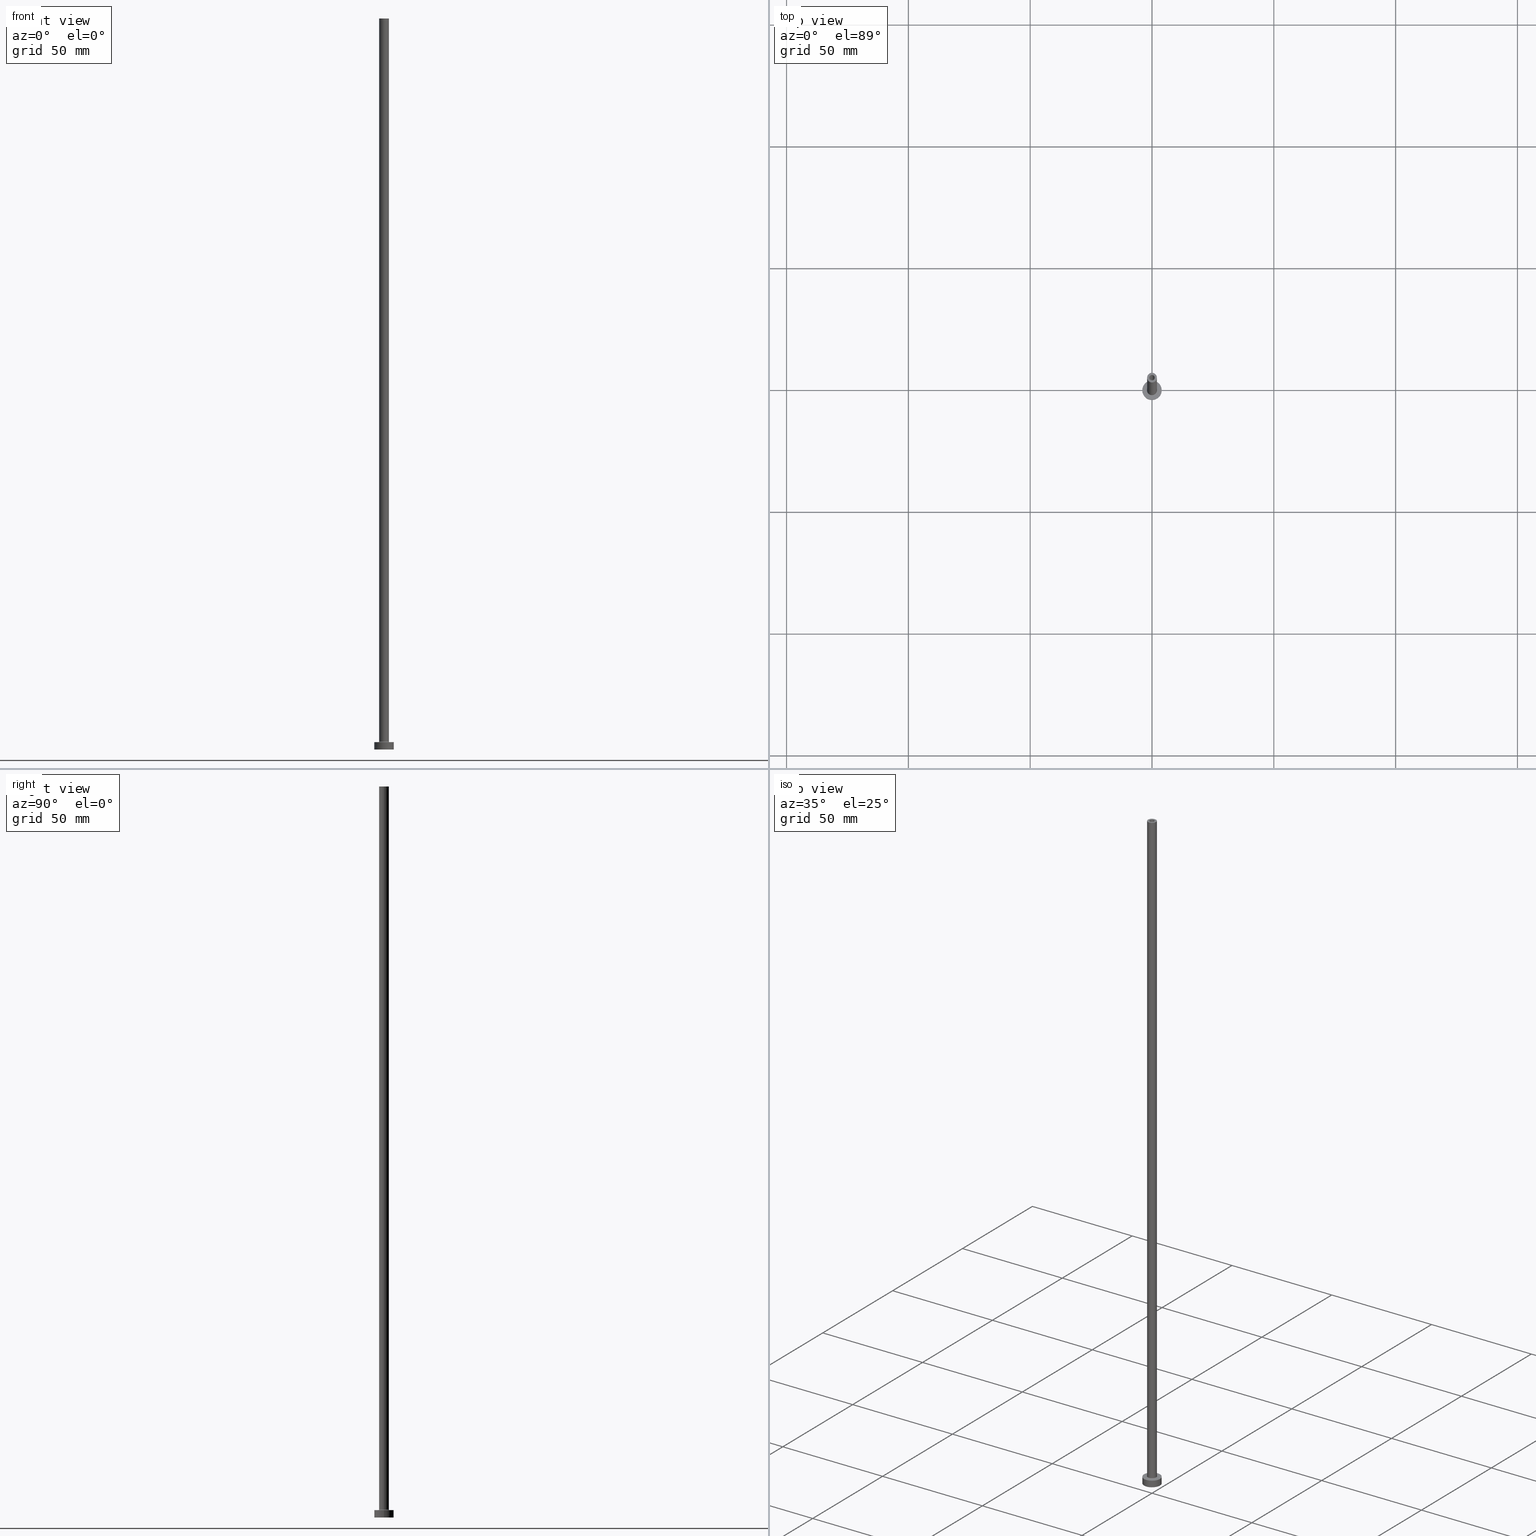
[diagram: canonical four-view strip — front | top / right | iso, engineering-drawing reading convention]
A machine part, canonical four-view strip (front | top / right | iso — engineering-drawing reading convention). The complete STEP part file that produces these views, byte-faithful:
ISO-10303-21;
HEADER;
FILE_DESCRIPTION (( 'STEP AP203' ),
    '1' );
FILE_NAME ('8319.STEP',
    '2023-02-13T18:08:44',
    ( '' ),
    ( '' ),
    'SwSTEP 2.0',
    'SolidWorks 2019',
    '' );
FILE_SCHEMA (( 'CONFIG_CONTROL_DESIGN' ));
ENDSEC;

DATA;
#1 = DATE_AND_TIME ( #283, #392 ) ;
#2 = ORIENTED_EDGE ( 'NONE', *, *, #139, .T. ) ;
#3 = EDGE_CURVE ( 'NONE', #393, #308, #415, .T. ) ;
#4 = VERTEX_POINT ( 'NONE', #151 ) ;
#5 = APPROVAL_DATE_TIME ( #355, #87 ) ;
#6 = EDGE_CURVE ( 'NONE', #135, #224, #374, .T. ) ;
#7 = ORIENTED_EDGE ( 'NONE', *, *, #399, .F. ) ;
#8 = DIRECTION ( 'NONE',  ( 1.000000000000000000, 0.000000000000000000, 0.000000000000000000 ) ) ;
#9 = CYLINDRICAL_SURFACE ( 'NONE', #460, 1.100000000000000089 ) ;
#10 = PLANE ( 'NONE',  #253 ) ;
#11 = CIRCLE ( 'NONE', #286, 1.250000000000000000 ) ;
#12 = VERTEX_POINT ( 'NONE', #342 ) ;
#13 = DIRECTION ( 'NONE',  ( 0.000000000000000000, 0.000000000000000000, 1.000000000000000000 ) ) ;
#14 = EDGE_CURVE ( 'NONE', #234, #220, #431, .T. ) ;
#15 = DIRECTION ( 'NONE',  ( 1.000000000000000000, 0.000000000000000000, 0.000000000000000000 ) ) ;
#16 = DIRECTION ( 'NONE',  ( 0.000000000000000000, 0.000000000000000000, 1.000000000000000000 ) ) ;
#17 = APPLICATION_CONTEXT ( 'configuration controlled 3d designs of mechanical parts and assemblies' ) ;
#18 = AXIS2_PLACEMENT_3D ( 'NONE', #339, #254, #408 ) ;
#19 = FACE_OUTER_BOUND ( 'NONE', #31, .T. ) ;
#20 = VERTEX_POINT ( 'NONE', #388 ) ;
#21 = CARTESIAN_POINT ( 'NONE',  ( 0.000000000000000000, 0.000000000000000000, 0.000000000000000000 ) ) ;
#22 = DIRECTION ( 'NONE',  ( 0.000000000000000000, 0.000000000000000000, 1.000000000000000000 ) ) ;
#23 = APPROVAL_DATE_TIME ( #27, #136 ) ;
#24 = FACE_BOUND ( 'NONE', #327, .T. ) ;
#25 = EDGE_CURVE ( 'NONE', #224, #441, #262, .T. ) ;
#26 = ADVANCED_BREP_SHAPE_REPRESENTATION ( '8319', ( #76, #406 ), #86 ) ;
#27 = DATE_AND_TIME ( #384, #122 ) ;
#28 = AXIS2_PLACEMENT_3D ( 'NONE', #439, #189, #199 ) ;
#29 = ORIENTED_EDGE ( 'NONE', *, *, #356, .T. ) ;
#30 = CYLINDRICAL_SURFACE ( 'NONE', #400, 2.000000000000000000 ) ;
#31 = EDGE_LOOP ( 'NONE', ( #103, #371, #345, #240 ) ) ;
#32 = EDGE_CURVE ( 'NONE', #112, #242, #277, .T. ) ;
#33 = CARTESIAN_POINT ( 'NONE',  ( 0.000000000000000000, 0.000000000000000000, 3.000000000000000000 ) ) ;
#34 = PERSON_AND_ORGANIZATION_ROLE ( 'creator' ) ;
#35 = ADVANCED_FACE ( 'NONE', ( #128 ), #275, .F. ) ;
#36 = APPROVAL_STATUS ( 'not_yet_approved' ) ;
#37 = ORIENTED_EDGE ( 'NONE', *, *, #340, .T. ) ;
#38 = ADVANCED_FACE ( 'NONE', ( #169, #385 ), #176, .T. ) ;
#39 = CIRCLE ( 'NONE', #430, 2.000000000000000000 ) ;
#40 = VERTEX_POINT ( 'NONE', #69 ) ;
#41 = PERSON_AND_ORGANIZATION ( #214, #260 ) ;
#42 = CARTESIAN_POINT ( 'NONE',  ( 1.250000000000000000, 1.530808498934191324E-16, 0.000000000000000000 ) ) ;
#43 = ORIENTED_EDGE ( 'NONE', *, *, #196, .F. ) ;
#44 = DIRECTION ( 'NONE',  ( 1.000000000000000000, 0.000000000000000000, 0.000000000000000000 ) ) ;
#45 = DIRECTION ( 'NONE',  ( 0.000000000000000000, 0.000000000000000000, 1.000000000000000000 ) ) ;
#46 = CARTESIAN_POINT ( 'NONE',  ( 2.000000000000000000, 2.449293598294706414E-16, 300.0000000000000000 ) ) ;
#47 = AXIS2_PLACEMENT_3D ( 'NONE', #289, #299, #255 ) ;
#48 = DIRECTION ( 'NONE',  ( 1.224646799147353207E-16, 1.000000000000000000, -0.000000000000000000 ) ) ;
#49 = CARTESIAN_POINT ( 'NONE',  ( 2.299999999999999822, 0.000000000000000000, 3.300000000000025135 ) ) ;
#50 = CARTESIAN_POINT ( 'NONE',  ( -1.100000000000000089, 0.000000000000000000, 265.0000000000000000 ) ) ;
#51 = ADVANCED_FACE ( 'NONE', ( #239, #457 ), #245, .T. ) ;
#52 = CARTESIAN_POINT ( 'NONE',  ( 0.000000000000000000, 0.000000000000000000, 265.0000000000000000 ) ) ;
#53 = CARTESIAN_POINT ( 'NONE',  ( 0.000000000000000000, 0.000000000000000000, 300.0000000000000000 ) ) ;
#54 = AXIS2_PLACEMENT_3D ( 'NONE', #52, #236, #124 ) ;
#55 = APPROVAL_PERSON_ORGANIZATION ( #129, #87, #182 ) ;
#56 = ORIENTED_EDGE ( 'NONE', *, *, #426, .F. ) ;
#57 = DIRECTION ( 'NONE',  ( -0.000000000000000000, -0.000000000000000000, -1.000000000000000000 ) ) ;
#58 = DIRECTION ( 'NONE',  ( 0.000000000000000000, 0.000000000000000000, 1.000000000000000000 ) ) ;
#59 = DIRECTION ( 'NONE',  ( -0.000000000000000000, -0.000000000000000000, -1.000000000000000000 ) ) ;
#60 = CYLINDRICAL_SURFACE ( 'NONE', #18, 1.250000000000000000 ) ;
#61 = PERSON_AND_ORGANIZATION ( #214, #260 ) ;
#62 = ORIENTED_EDGE ( 'NONE', *, *, #84, .T. ) ;
#63 = CARTESIAN_POINT ( 'NONE',  ( 0.000000000000000000, 0.000000000000000000, 3.000000000000000000 ) ) ;
#64 = DIRECTION ( 'NONE',  ( 0.000000000000000000, 0.000000000000000000, 1.000000000000000000 ) ) ;
#65 = EDGE_CURVE ( 'NONE', #441, #224, #80, .T. ) ;
#66 = APPROVAL_PERSON_ORGANIZATION ( #215, #136, #456 ) ;
#67 = EDGE_LOOP ( 'NONE', ( #381, #446, #166, #146 ) ) ;
#68 = AXIS2_PLACEMENT_3D ( 'NONE', #334, #301, #101 ) ;
#69 = CARTESIAN_POINT ( 'NONE',  ( -1.100000000000000089, 0.000000000000000000, 300.0000000000000000 ) ) ;
#70 = APPLICATION_PROTOCOL_DEFINITION ( 'international standard', 'config_control_design', 1994, #17 ) ;
#71 = PRODUCT ( '8319', '8319', '', ( #312 ) ) ;
#72 = APPROVAL_ROLE ( '' ) ;
#73 = VERTEX_POINT ( 'NONE', #307 ) ;
#74 = ORIENTED_EDGE ( 'NONE', *, *, #32, .F. ) ;
#75 = PERSON_AND_ORGANIZATION_ROLE ( 'classification_officer' ) ;
#76 = MANIFOLD_SOLID_BREP ( 'Odebrat vysunut�m4', #213 ) ;
#77 = CIRCLE ( 'NONE', #28, 1.100000000000000089 ) ;
#78 = DIRECTION ( 'NONE',  ( 0.000000000000000000, 0.000000000000000000, 1.000000000000000000 ) ) ;
#79 = AXIS2_PLACEMENT_3D ( 'NONE', #130, #164, #105 ) ;
#80 = CIRCLE ( 'NONE', #335, 1.100000000000000089 ) ;
#81 = DIRECTION ( 'NONE',  ( -0.000000000000000000, -0.000000000000000000, -1.000000000000000000 ) ) ;
#82 = CYLINDRICAL_SURFACE ( 'NONE', #306, 4.000000000000000000 ) ;
#83 = LINE ( 'NONE', #226, #316 ) ;
#84 = EDGE_CURVE ( 'NONE', #40, #441, #417, .T. ) ;
#85 = CARTESIAN_POINT ( 'NONE',  ( 0.000000000000000000, 0.000000000000000000, 3.300000000000025135 ) ) ;
#86 =( GEOMETRIC_REPRESENTATION_CONTEXT ( 3 ) GLOBAL_UNCERTAINTY_ASSIGNED_CONTEXT ( ( #109 ) ) GLOBAL_UNIT_ASSIGNED_CONTEXT ( ( #134, #241, #380 ) ) REPRESENTATION_CONTEXT ( 'NONE', 'WORKASPACE' ) );
#87 = APPROVAL ( #36, 'NEUR�EN�' ) ;
#88 = CARTESIAN_POINT ( 'NONE',  ( 0.000000000000000000, 0.000000000000000000, 3.300000000000025135 ) ) ;
#89 = ORIENTED_EDGE ( 'NONE', *, *, #207, .F. ) ;
#90 = CARTESIAN_POINT ( 'NONE',  ( -4.000000000000000000, 0.000000000000000000, 3.000000000000000000 ) ) ;
#91 = EDGE_LOOP ( 'NONE', ( #368, #298 ) ) ;
#92 = FACE_OUTER_BOUND ( 'NONE', #354, .T. ) ;
#93 = ORIENTED_EDGE ( 'NONE', *, *, #453, .F. ) ;
#94 = DIRECTION ( 'NONE',  ( -0.000000000000000000, -0.000000000000000000, -1.000000000000000000 ) ) ;
#95 = CARTESIAN_POINT ( 'NONE',  ( -1.100000000000000089, 0.000000000000000000, 300.0000000000000000 ) ) ;
#96 = CIRCLE ( 'NONE', #243, 4.000000000000000000 ) ;
#97 = EDGE_LOOP ( 'NONE', ( #89, #292, #37, #318 ) ) ;
#98 = DIRECTION ( 'NONE',  ( 0.000000000000000000, -1.000000000000000000, 0.000000000000000000 ) ) ;
#99 = DIRECTION ( 'NONE',  ( 1.000000000000000000, 0.000000000000000000, 0.000000000000000000 ) ) ;
#100 = APPROVAL_STATUS ( 'not_yet_approved' ) ;
#101 = DIRECTION ( 'NONE',  ( 1.000000000000000000, 0.000000000000000000, 0.000000000000000000 ) ) ;
#102 = ADVANCED_FACE ( 'NONE', ( #379 ), #30, .T. ) ;
#103 = ORIENTED_EDGE ( 'NONE', *, *, #349, .F. ) ;
#104 = AXIS2_PLACEMENT_3D ( 'NONE', #49, #98, #378 ) ;
#105 = DIRECTION ( 'NONE',  ( -1.000000000000000000, 0.000000000000000000, 0.000000000000000000 ) ) ;
#106 = DATE_TIME_ROLE ( 'classification_date' ) ;
#107 = ADVANCED_FACE ( 'NONE', ( #452 ), #60, .F. ) ;
#108 = ORIENTED_EDGE ( 'NONE', *, *, #358, .F. ) ;
#109 = UNCERTAINTY_MEASURE_WITH_UNIT (LENGTH_MEASURE( 1.000000000000000082E-05 ), #134, 'distance_accuracy_value', 'NONE');
#110 = AXIS2_PLACEMENT_3D ( 'NONE', #204, #59, #209 ) ;
#111 = EDGE_CURVE ( 'NONE', #212, #12, #11, .T. ) ;
#112 = VERTEX_POINT ( 'NONE', #231 ) ;
#113 = AXIS2_PLACEMENT_3D ( 'NONE', #120, #401, #117 ) ;
#114 = DIRECTION ( 'NONE',  ( 0.000000000000000000, 0.000000000000000000, 1.000000000000000000 ) ) ;
#115 = ADVANCED_FACE ( 'NONE', ( #153 ), #326, .T. ) ;
#116 = CARTESIAN_POINT ( 'NONE',  ( 0.000000000000000000, 0.000000000000000000, 3.000000000000000000 ) ) ;
#117 = DIRECTION ( 'NONE',  ( 1.000000000000000000, 0.000000000000000000, 0.000000000000000000 ) ) ;
#118 = CC_DESIGN_PERSON_AND_ORGANIZATION_ASSIGNMENT ( #61, #34, ( #201 ) ) ;
#119 = DIRECTION ( 'NONE',  ( 0.000000000000000000, 0.000000000000000000, 1.000000000000000000 ) ) ;
#120 = CARTESIAN_POINT ( 'NONE',  ( 0.000000000000000000, 0.000000000000000000, 3.000000000000000000 ) ) ;
#121 = CARTESIAN_POINT ( 'NONE',  ( -1.250000000000000000, 0.000000000000000000, 268.5355339059327662 ) ) ;
#122 = LOCAL_TIME ( 19, 8, 44.00000000000000000, #138 ) ;
#123 = ORIENTED_EDGE ( 'NONE', *, *, #356, .F. ) ;
#124 = DIRECTION ( 'NONE',  ( 1.000000000000000000, 0.000000000000000000, 0.000000000000000000 ) ) ;
#125 = EDGE_CURVE ( 'NONE', #252, #308, #39, .T. ) ;
#126 = DIRECTION ( 'NONE',  ( -0.000000000000000000, -0.000000000000000000, -1.000000000000000000 ) ) ;
#127 = DIRECTION ( 'NONE',  ( -1.000000000000000000, 0.000000000000000000, 0.000000000000000000 ) ) ;
#128 = FACE_OUTER_BOUND ( 'NONE', #67, .T. ) ;
#129 = PERSON_AND_ORGANIZATION ( #214, #260 ) ;
#130 = CARTESIAN_POINT ( 'NONE',  ( 0.000000000000000000, 0.000000000000000000, 300.0000000000000000 ) ) ;
#131 = AXIS2_PLACEMENT_3D ( 'NONE', #405, #78, #156 ) ;
#132 = DIRECTION ( 'NONE',  ( 1.000000000000000000, 0.000000000000000000, 0.000000000000000000 ) ) ;
#133 = EDGE_CURVE ( 'NONE', #4, #73, #96, .T. ) ;
#134 =( LENGTH_UNIT ( ) NAMED_UNIT ( * ) SI_UNIT ( .MILLI., .METRE. ) );
#135 = VERTEX_POINT ( 'NONE', #193 ) ;
#136 = APPROVAL ( #100, 'NEUR�EN�' ) ;
#137 = DIRECTION ( 'NONE',  ( 1.000000000000000000, 0.000000000000000000, 0.000000000000000000 ) ) ;
#138 = COORDINATED_UNIVERSAL_TIME_OFFSET ( 1, 0, .AHEAD. ) ;
#139 = EDGE_CURVE ( 'NONE', #20, #12, #284, .T. ) ;
#140 = TOROIDAL_SURFACE ( 'NONE', #178, 2.299999999999999822, 0.2999999999999999889 ) ;
#141 = AXIS2_PLACEMENT_3D ( 'NONE', #53, #22, #382 ) ;
#142 = APPROVAL_DATE_TIME ( #314, #346 ) ;
#143 = ORIENTED_EDGE ( 'NONE', *, *, #133, .F. ) ;
#144 = AXIS2_PLACEMENT_3D ( 'NONE', #63, #205, #99 ) ;
#145 = PERSON_AND_ORGANIZATION_ROLE ( 'creator' ) ;
#146 = ORIENTED_EDGE ( 'NONE', *, *, #84, .F. ) ;
#147 = FACE_OUTER_BOUND ( 'NONE', #208, .T. ) ;
#148 = EDGE_CURVE ( 'NONE', #168, #212, #362, .T. ) ;
#149 = CIRCLE ( 'NONE', #427, 1.100000000000000089 ) ;
#150 = CARTESIAN_POINT ( 'NONE',  ( 0.000000000000000000, 0.000000000000000000, 0.000000000000000000 ) ) ;
#151 = CARTESIAN_POINT ( 'NONE',  ( 4.000000000000000000, 4.898587196589412829E-16, 0.000000000000000000 ) ) ;
#152 = CARTESIAN_POINT ( 'NONE',  ( 0.000000000000000000, 0.000000000000000000, 300.0000000000000000 ) ) ;
#153 = FACE_OUTER_BOUND ( 'NONE', #336, .T. ) ;
#154 = CARTESIAN_POINT ( 'NONE',  ( 0.000000000000000000, 0.000000000000000000, 300.0000000000000000 ) ) ;
#155 = ORIENTED_EDGE ( 'NONE', *, *, #25, .F. ) ;
#156 = DIRECTION ( 'NONE',  ( 1.000000000000000000, 0.000000000000000000, 0.000000000000000000 ) ) ;
#157 = CYLINDRICAL_SURFACE ( 'NONE', #191, 1.250000000000000000 ) ;
#158 = ORIENTED_EDGE ( 'NONE', *, *, #14, .F. ) ;
#159 = DIRECTION ( 'NONE',  ( 1.000000000000000000, 0.000000000000000000, 0.000000000000000000 ) ) ;
#160 = VECTOR ( 'NONE', #251, 1000.000000000000000 ) ;
#161 = ORIENTED_EDGE ( 'NONE', *, *, #187, .F. ) ;
#162 = AXIS2_PLACEMENT_3D ( 'NONE', #455, #347, #137 ) ;
#163 = CARTESIAN_POINT ( 'NONE',  ( 0.000000000000000000, 0.000000000000000000, 300.0000000000000000 ) ) ;
#164 = DIRECTION ( 'NONE',  ( 0.000000000000000000, 0.000000000000000000, -1.000000000000000000 ) ) ;
#165 = CALENDAR_DATE ( 2023, 13, 2 ) ;
#166 = ORIENTED_EDGE ( 'NONE', *, *, #65, .F. ) ;
#167 = DIRECTION ( 'NONE',  ( -1.000000000000000000, 0.000000000000000000, 0.000000000000000000 ) ) ;
#168 = VERTEX_POINT ( 'NONE', #403 ) ;
#169 = FACE_BOUND ( 'NONE', #264, .T. ) ;
#170 = CIRCLE ( 'NONE', #54, 1.250000000000000000 ) ;
#171 = DIRECTION ( 'NONE',  ( 0.000000000000000000, 0.000000000000000000, 1.000000000000000000 ) ) ;
#172 = CC_DESIGN_DATE_AND_TIME_ASSIGNMENT ( #459, #449, ( #201 ) ) ;
#173 = VECTOR ( 'NONE', #188, 1000.000000000000000 ) ;
#174 = EDGE_LOOP ( 'NONE', ( #360, #428 ) ) ;
#175 = EDGE_CURVE ( 'NONE', #242, #73, #186, .T. ) ;
#176 = PLANE ( 'NONE',  #333 ) ;
#177 = PERSON_AND_ORGANIZATION ( #214, #260 ) ;
#178 = AXIS2_PLACEMENT_3D ( 'NONE', #309, #171, #132 ) ;
#179 = PERSON_AND_ORGANIZATION_ROLE ( 'design_supplier' ) ;
#180 = EDGE_LOOP ( 'NONE', ( #161, #43, #451, #315 ) ) ;
#181 = COORDINATED_UNIVERSAL_TIME_OFFSET ( 1, 0, .AHEAD. ) ;
#182 = APPROVAL_ROLE ( '' ) ;
#183 = CIRCLE ( 'NONE', #351, 2.000000000000000000 ) ;
#184 = ORIENTED_EDGE ( 'NONE', *, *, #358, .T. ) ;
#185 = APPROVAL_STATUS ( 'not_yet_approved' ) ;
#186 = LINE ( 'NONE', #90, #160 ) ;
#187 = EDGE_CURVE ( 'NONE', #230, #252, #83, .T. ) ;
#188 = DIRECTION ( 'NONE',  ( -0.000000000000000000, -0.000000000000000000, -1.000000000000000000 ) ) ;
#189 = DIRECTION ( 'NONE',  ( 0.000000000000000000, 0.000000000000000000, 1.000000000000000000 ) ) ;
#190 = CARTESIAN_POINT ( 'NONE',  ( -2.299999999999999822, 2.816687638038912056E-16, 3.300000000000025135 ) ) ;
#191 = AXIS2_PLACEMENT_3D ( 'NONE', #229, #324, #232 ) ;
#192 = DIRECTION ( 'NONE',  ( 0.000000000000000000, 0.000000000000000000, -1.000000000000000000 ) ) ;
#193 = CARTESIAN_POINT ( 'NONE',  ( 1.100000000000000089, 1.347111479062088503E-16, 300.0000000000000000 ) ) ;
#194 = DIRECTION ( 'NONE',  ( -1.000000000000000000, 0.000000000000000000, 0.000000000000000000 ) ) ;
#195 = EDGE_LOOP ( 'NONE', ( #294, #282 ) ) ;
#196 = EDGE_CURVE ( 'NONE', #393, #230, #183, .T. ) ;
#197 = DIRECTION ( 'NONE',  ( 0.000000000000000000, 0.000000000000000000, -1.000000000000000000 ) ) ;
#198 = EDGE_LOOP ( 'NONE', ( #329, #247, #443, #259 ) ) ;
#199 = DIRECTION ( 'NONE',  ( 1.000000000000000000, 0.000000000000000000, 0.000000000000000000 ) ) ;
#200 = ORIENTED_EDGE ( 'NONE', *, *, #436, .T. ) ;
#201 = PRODUCT_DEFINITION ( 'NEZN�M�', '', #377, #395 ) ;
#202 = AXIS2_PLACEMENT_3D ( 'NONE', #190, #48, #396 ) ;
#203 = ORIENTED_EDGE ( 'NONE', *, *, #421, .F. ) ;
#204 = CARTESIAN_POINT ( 'NONE',  ( 0.000000000000000000, 0.000000000000000000, 0.000000000000000000 ) ) ;
#205 = DIRECTION ( 'NONE',  ( -0.000000000000000000, -0.000000000000000000, -1.000000000000000000 ) ) ;
#206 = PRODUCT_DEFINITION_SHAPE ( 'NONE', 'NONE',  #201 ) ;
#207 = EDGE_CURVE ( 'NONE', #308, #220, #321, .T. ) ;
#208 = EDGE_LOOP ( 'NONE', ( #203, #108 ) ) ;
#209 = DIRECTION ( 'NONE',  ( 1.000000000000000000, 0.000000000000000000, 0.000000000000000000 ) ) ;
#210 = COORDINATED_UNIVERSAL_TIME_OFFSET ( 1, 0, .AHEAD. ) ;
#211 = CIRCLE ( 'NONE', #47, 1.250000000000000000 ) ;
#212 = VERTEX_POINT ( 'NONE', #42 ) ;
#213 = CLOSED_SHELL ( 'NONE', ( #35, #435, #458, #373, #115, #450, #38, #363, #102, #51, #383, #107, #219, #416 ) ) ;
#214 = PERSON ( 'NEUR�EN�', 'NEUR�EN�', 'NEUR�EN�', ('NEUR�EN�'), ('NEUR�EN�'), ('NEUR�EN�') ) ;
#215 = PERSON_AND_ORGANIZATION ( #214, #260 ) ;
#216 = COORDINATED_UNIVERSAL_TIME_OFFSET ( 1, 0, .AHEAD. ) ;
#217 = AXIS2_PLACEMENT_3D ( 'NONE', #116, #223, #288 ) ;
#218 = CC_DESIGN_APPROVAL ( #346, ( #398 ) ) ;
#219 = ADVANCED_FACE ( 'NONE', ( #444, #147 ), #10, .F. ) ;
#220 = VERTEX_POINT ( 'NONE', #365 ) ;
#221 = ORIENTED_EDGE ( 'NONE', *, *, #3, .F. ) ;
#222 = DIRECTION ( 'NONE',  ( -0.000000000000000000, -0.000000000000000000, -1.000000000000000000 ) ) ;
#223 = DIRECTION ( 'NONE',  ( -0.000000000000000000, -0.000000000000000000, -1.000000000000000000 ) ) ;
#224 = VERTEX_POINT ( 'NONE', #438 ) ;
#225 = CARTESIAN_POINT ( 'NONE',  ( 0.000000000000000000, 0.000000000000000000, 0.000000000000000000 ) ) ;
#226 = CARTESIAN_POINT ( 'NONE',  ( 2.000000000000000000, 2.449293598294706414E-16, 300.0000000000000000 ) ) ;
#227 = FACE_OUTER_BOUND ( 'NONE', #97, .T. ) ;
#228 = CIRCLE ( 'NONE', #104, 0.2999999999999999334 ) ;
#229 = CARTESIAN_POINT ( 'NONE',  ( 0.000000000000000000, 0.000000000000000000, 268.5355339059327662 ) ) ;
#230 = VERTEX_POINT ( 'NONE', #46 ) ;
#231 = CARTESIAN_POINT ( 'NONE',  ( 4.000000000000000000, 4.898587196589412829E-16, 3.000000000000000000 ) ) ;
#232 = DIRECTION ( 'NONE',  ( -1.000000000000000000, 0.000000000000000000, 0.000000000000000000 ) ) ;
#233 = CARTESIAN_POINT ( 'NONE',  ( -2.000000000000000000, 0.000000000000000000, 300.0000000000000000 ) ) ;
#234 = VERTEX_POINT ( 'NONE', #257 ) ;
#235 = EDGE_CURVE ( 'NONE', #308, #252, #366, .T. ) ;
#236 = DIRECTION ( 'NONE',  ( 0.000000000000000000, 0.000000000000000000, 1.000000000000000000 ) ) ;
#237 = AXIS2_PLACEMENT_3D ( 'NONE', #88, #13, #361 ) ;
#238 = DIRECTION ( 'NONE',  ( 0.000000000000000000, 0.000000000000000000, -1.000000000000000000 ) ) ;
#239 = FACE_BOUND ( 'NONE', #250, .T. ) ;
#240 = ORIENTED_EDGE ( 'NONE', *, *, #453, .T. ) ;
#241 =( NAMED_UNIT ( * ) PLANE_ANGLE_UNIT ( ) SI_UNIT ( $, .RADIAN. ) );
#242 = VERTEX_POINT ( 'NONE', #291 ) ;
#243 = AXIS2_PLACEMENT_3D ( 'NONE', #322, #256, #8 ) ;
#244 = DIRECTION ( 'NONE',  ( 1.000000000000000000, 0.000000000000000000, 0.000000000000000000 ) ) ;
#245 = PLANE ( 'NONE',  #141 ) ;
#246 = PERSON_AND_ORGANIZATION ( #214, #260 ) ;
#247 = ORIENTED_EDGE ( 'NONE', *, *, #148, .T. ) ;
#248 = AXIS2_PLACEMENT_3D ( 'NONE', #21, #265, #414 ) ;
#249 = VECTOR ( 'NONE', #238, 1000.000000000000000 ) ;
#250 = EDGE_LOOP ( 'NONE', ( #7, #56 ) ) ;
#251 = DIRECTION ( 'NONE',  ( -0.000000000000000000, -0.000000000000000000, -1.000000000000000000 ) ) ;
#252 = VERTEX_POINT ( 'NONE', #440 ) ;
#253 = AXIS2_PLACEMENT_3D ( 'NONE', #296, #323, #287 ) ;
#254 = DIRECTION ( 'NONE',  ( 0.000000000000000000, 0.000000000000000000, -1.000000000000000000 ) ) ;
#255 = DIRECTION ( 'NONE',  ( 1.000000000000000000, 0.000000000000000000, 0.000000000000000000 ) ) ;
#256 = DIRECTION ( 'NONE',  ( 0.000000000000000000, 0.000000000000000000, 1.000000000000000000 ) ) ;
#257 = CARTESIAN_POINT ( 'NONE',  ( 2.299999999999999822, 0.000000000000000000, 3.000000000000012434 ) ) ;
#258 = FACE_OUTER_BOUND ( 'NONE', #198, .T. ) ;
#259 = ORIENTED_EDGE ( 'NONE', *, *, #139, .F. ) ;
#260 = ORGANIZATION ( 'NEUR�EN�', 'NEUR�EN�', '' ) ;
#261 = CARTESIAN_POINT ( 'NONE',  ( -2.000000000000000000, 0.000000000000000000, 3.300000000000025135 ) ) ;
#262 = CIRCLE ( 'NONE', #162, 1.100000000000000089 ) ;
#263 = DIRECTION ( 'NONE',  ( 1.000000000000000000, 0.000000000000000000, 0.000000000000000000 ) ) ;
#264 = EDGE_LOOP ( 'NONE', ( #391, #200 ) ) ;
#265 = DIRECTION ( 'NONE',  ( 0.000000000000000000, 0.000000000000000000, 1.000000000000000000 ) ) ;
#266 = DIRECTION ( 'NONE',  ( -1.000000000000000000, 0.000000000000000000, 0.000000000000000000 ) ) ;
#267 = CYLINDRICAL_SURFACE ( 'NONE', #390, 2.000000000000000000 ) ;
#268 = DIRECTION ( 'NONE',  ( 1.000000000000000000, 0.000000000000000000, 0.000000000000000000 ) ) ;
#269 = FACE_OUTER_BOUND ( 'NONE', #270, .T. ) ;
#270 = EDGE_LOOP ( 'NONE', ( #300, #304, #158, #310 ) ) ;
#271 = DIRECTION ( 'NONE',  ( 0.000000000000000000, 0.000000000000000000, 1.000000000000000000 ) ) ;
#272 = LOCAL_TIME ( 19, 8, 44.00000000000000000, #181 ) ;
#273 = CARTESIAN_POINT ( 'NONE',  ( 0.000000000000000000, 0.000000000000000000, 0.000000000000000000 ) ) ;
#274 = ORIENTED_EDGE ( 'NONE', *, *, #6, .F. ) ;
#275 = CYLINDRICAL_SURFACE ( 'NONE', #79, 1.100000000000000089 ) ;
#276 = TOROIDAL_SURFACE ( 'NONE', #237, 2.299999999999999822, 0.2999999999999999889 ) ;
#277 = CIRCLE ( 'NONE', #68, 4.000000000000000000 ) ;
#278 = SHAPE_DEFINITION_REPRESENTATION ( #206, #26 ) ;
#279 = PRODUCT_RELATED_PRODUCT_CATEGORY ( 'detail', '', ( #71 ) ) ;
#280 = SECURITY_CLASSIFICATION_LEVEL ( 'unclassified' ) ;
#281 = CIRCLE ( 'NONE', #330, 4.000000000000000000 ) ;
#282 = ORIENTED_EDGE ( 'NONE', *, *, #25, .T. ) ;
#283 = CALENDAR_DATE ( 2023, 13, 2 ) ;
#284 = LINE ( 'NONE', #121, #295 ) ;
#285 = FACE_OUTER_BOUND ( 'NONE', #434, .T. ) ;
#286 = AXIS2_PLACEMENT_3D ( 'NONE', #150, #81, #15 ) ;
#287 = DIRECTION ( 'NONE',  ( 1.000000000000000000, 0.000000000000000000, -0.000000000000000000 ) ) ;
#288 = DIRECTION ( 'NONE',  ( -1.000000000000000000, 0.000000000000000000, 0.000000000000000000 ) ) ;
#289 = CARTESIAN_POINT ( 'NONE',  ( 0.000000000000000000, 0.000000000000000000, 265.0000000000000000 ) ) ;
#290 = EDGE_LOOP ( 'NONE', ( #93, #143 ) ) ;
#291 = CARTESIAN_POINT ( 'NONE',  ( -4.000000000000000000, 0.000000000000000000, 3.000000000000000000 ) ) ;
#292 = ORIENTED_EDGE ( 'NONE', *, *, #125, .F. ) ;
#293 = CARTESIAN_POINT ( 'NONE',  ( -2.000000000000000000, 0.000000000000000000, 300.0000000000000000 ) ) ;
#294 = ORIENTED_EDGE ( 'NONE', *, *, #65, .T. ) ;
#295 = VECTOR ( 'NONE', #197, 1000.000000000000000 ) ;
#296 = CARTESIAN_POINT ( 'NONE',  ( 0.000000000000000000, 0.000000000000000000, 265.0000000000000000 ) ) ;
#297 = CC_DESIGN_PERSON_AND_ORGANIZATION_ASSIGNMENT ( #177, #75, ( #398 ) ) ;
#298 = ORIENTED_EDGE ( 'NONE', *, *, #410, .T. ) ;
#299 = DIRECTION ( 'NONE',  ( 0.000000000000000000, 0.000000000000000000, 1.000000000000000000 ) ) ;
#300 = ORIENTED_EDGE ( 'NONE', *, *, #235, .F. ) ;
#301 = DIRECTION ( 'NONE',  ( 0.000000000000000000, 0.000000000000000000, 1.000000000000000000 ) ) ;
#302 = PLANE ( 'NONE',  #248 ) ;
#303 = CARTESIAN_POINT ( 'NONE',  ( 0.000000000000000000, 0.000000000000000000, 300.0000000000000000 ) ) ;
#304 = ORIENTED_EDGE ( 'NONE', *, *, #207, .T. ) ;
#305 = VECTOR ( 'NONE', #57, 1000.000000000000000 ) ;
#306 = AXIS2_PLACEMENT_3D ( 'NONE', #445, #126, #266 ) ;
#307 = CARTESIAN_POINT ( 'NONE',  ( -4.000000000000000000, 0.000000000000000000, 0.000000000000000000 ) ) ;
#308 = VERTEX_POINT ( 'NONE', #261 ) ;
#309 = CARTESIAN_POINT ( 'NONE',  ( 0.000000000000000000, 0.000000000000000000, 3.300000000000025135 ) ) ;
#310 = ORIENTED_EDGE ( 'NONE', *, *, #340, .F. ) ;
#311 = DIRECTION ( 'NONE',  ( 1.000000000000000000, 0.000000000000000000, -0.000000000000000000 ) ) ;
#312 = MECHANICAL_CONTEXT ( 'NONE', #411, 'mechanical' ) ;
#313 = CIRCLE ( 'NONE', #113, 4.000000000000000000 ) ;
#314 = DATE_AND_TIME ( #350, #331 ) ;
#315 = ORIENTED_EDGE ( 'NONE', *, *, #235, .T. ) ;
#316 = VECTOR ( 'NONE', #222, 1000.000000000000000 ) ;
#317 = CC_DESIGN_APPROVAL ( #87, ( #377 ) ) ;
#318 = ORIENTED_EDGE ( 'NONE', *, *, #436, .F. ) ;
#319 = CARTESIAN_POINT ( 'NONE',  ( 1.100000000000000089, 1.347111479062088503E-16, 300.0000000000000000 ) ) ;
#320 = CARTESIAN_POINT ( 'NONE',  ( 0.000000000000000000, 0.000000000000000000, 300.0000000000000000 ) ) ;
#321 = CIRCLE ( 'NONE', #202, 0.2999999999999999334 ) ;
#322 = CARTESIAN_POINT ( 'NONE',  ( 0.000000000000000000, 0.000000000000000000, 0.000000000000000000 ) ) ;
#323 = DIRECTION ( 'NONE',  ( 0.000000000000000000, 0.000000000000000000, 1.000000000000000000 ) ) ;
#324 = DIRECTION ( 'NONE',  ( 0.000000000000000000, 0.000000000000000000, -1.000000000000000000 ) ) ;
#325 = ORIENTED_EDGE ( 'NONE', *, *, #410, .F. ) ;
#326 = CYLINDRICAL_SURFACE ( 'NONE', #217, 4.000000000000000000 ) ;
#327 = EDGE_LOOP ( 'NONE', ( #123, #386 ) ) ;
#328 = DIRECTION ( 'NONE',  ( 1.000000000000000000, 0.000000000000000000, 0.000000000000000000 ) ) ;
#329 = ORIENTED_EDGE ( 'NONE', *, *, #421, .T. ) ;
#330 = AXIS2_PLACEMENT_3D ( 'NONE', #225, #45, #244 ) ;
#331 = LOCAL_TIME ( 19, 8, 44.00000000000000000, #216 ) ;
#332 = FACE_OUTER_BOUND ( 'NONE', #290, .T. ) ;
#333 = AXIS2_PLACEMENT_3D ( 'NONE', #33, #271, #311 ) ;
#334 = CARTESIAN_POINT ( 'NONE',  ( 0.000000000000000000, 0.000000000000000000, 3.000000000000000000 ) ) ;
#335 = AXIS2_PLACEMENT_3D ( 'NONE', #448, #58, #268 ) ;
#336 = EDGE_LOOP ( 'NONE', ( #74, #419, #425, #407 ) ) ;
#337 = LINE ( 'NONE', #447, #305 ) ;
#338 = DIRECTION ( 'NONE',  ( -0.000000000000000000, -0.000000000000000000, -1.000000000000000000 ) ) ;
#339 = CARTESIAN_POINT ( 'NONE',  ( 0.000000000000000000, 0.000000000000000000, 268.5355339059327662 ) ) ;
#340 = EDGE_CURVE ( 'NONE', #252, #234, #228, .T. ) ;
#341 = AXIS2_PLACEMENT_3D ( 'NONE', #372, #404, #328 ) ;
#342 = CARTESIAN_POINT ( 'NONE',  ( -1.250000000000000000, 0.000000000000000000, 0.000000000000000000 ) ) ;
#343 = VECTOR ( 'NONE', #423, 1000.000000000000000 ) ;
#344 = DIRECTION ( 'NONE',  ( 1.000000000000000000, 0.000000000000000000, 0.000000000000000000 ) ) ;
#345 = ORIENTED_EDGE ( 'NONE', *, *, #175, .T. ) ;
#346 = APPROVAL ( #185, 'NEUR�EN�' ) ;
#347 = DIRECTION ( 'NONE',  ( 0.000000000000000000, 0.000000000000000000, 1.000000000000000000 ) ) ;
#348 = PERSON_AND_ORGANIZATION_ROLE ( 'design_owner' ) ;
#349 = EDGE_CURVE ( 'NONE', #112, #4, #337, .T. ) ;
#350 = CALENDAR_DATE ( 2023, 13, 2 ) ;
#351 = AXIS2_PLACEMENT_3D ( 'NONE', #359, #16, #44 ) ;
#352 = PERSON_AND_ORGANIZATION ( #214, #260 ) ;
#353 = EDGE_LOOP ( 'NONE', ( #433, #184, #2, #29 ) ) ;
#354 = EDGE_LOOP ( 'NONE', ( #325, #409, #454, #221 ) ) ;
#355 = DATE_AND_TIME ( #394, #272 ) ;
#356 = EDGE_CURVE ( 'NONE', #12, #212, #442, .T. ) ;
#357 = CIRCLE ( 'NONE', #376, 2.000000000000000000 ) ;
#358 = EDGE_CURVE ( 'NONE', #168, #20, #170, .T. ) ;
#359 = CARTESIAN_POINT ( 'NONE',  ( 0.000000000000000000, 0.000000000000000000, 300.0000000000000000 ) ) ;
#360 = ORIENTED_EDGE ( 'NONE', *, *, #429, .T. ) ;
#361 = DIRECTION ( 'NONE',  ( 1.000000000000000000, 0.000000000000000000, 0.000000000000000000 ) ) ;
#362 = LINE ( 'NONE', #370, #397 ) ;
#363 = ADVANCED_FACE ( 'NONE', ( #24, #332 ), #302, .F. ) ;
#364 = DIRECTION ( 'NONE',  ( 0.000000000000000000, 0.000000000000000000, -1.000000000000000000 ) ) ;
#365 = CARTESIAN_POINT ( 'NONE',  ( -2.299999999999999822, 2.816687638038912056E-16, 3.000000000000012434 ) ) ;
#366 = CIRCLE ( 'NONE', #131, 2.000000000000000000 ) ;
#367 = APPROVAL_PERSON_ORGANIZATION ( #41, #346, #72 ) ;
#368 = ORIENTED_EDGE ( 'NONE', *, *, #196, .T. ) ;
#369 = CC_DESIGN_PERSON_AND_ORGANIZATION_ASSIGNMENT ( #352, #179, ( #377 ) ) ;
#370 = CARTESIAN_POINT ( 'NONE',  ( 1.250000000000000000, 1.530808498934191324E-16, 268.5355339059327662 ) ) ;
#371 = ORIENTED_EDGE ( 'NONE', *, *, #429, .F. ) ;
#372 = CARTESIAN_POINT ( 'NONE',  ( 0.000000000000000000, 0.000000000000000000, 3.000000000000000000 ) ) ;
#373 = ADVANCED_FACE ( 'NONE', ( #92 ), #267, .T. ) ;
#374 = LINE ( 'NONE', #319, #343 ) ;
#375 = PERSON_AND_ORGANIZATION ( #214, #260 ) ;
#376 = AXIS2_PLACEMENT_3D ( 'NONE', #320, #114, #263 ) ;
#377 = PRODUCT_DEFINITION_FORMATION_WITH_SPECIFIED_SOURCE ( 'LIBOVOLN�', '', #71, .NOT_KNOWN. ) ;
#378 = DIRECTION ( 'NONE',  ( 0.000000000000000000, 0.000000000000000000, -1.000000000000000000 ) ) ;
#379 = FACE_OUTER_BOUND ( 'NONE', #180, .T. ) ;
#380 =( NAMED_UNIT ( * ) SI_UNIT ( $, .STERADIAN. ) SOLID_ANGLE_UNIT ( ) );
#381 = ORIENTED_EDGE ( 'NONE', *, *, #399, .T. ) ;
#382 = DIRECTION ( 'NONE',  ( 1.000000000000000000, 0.000000000000000000, -0.000000000000000000 ) ) ;
#383 = ADVANCED_FACE ( 'NONE', ( #227 ), #276, .F. ) ;
#384 = CALENDAR_DATE ( 2023, 13, 2 ) ;
#385 = FACE_OUTER_BOUND ( 'NONE', #174, .T. ) ;
#386 = ORIENTED_EDGE ( 'NONE', *, *, #111, .F. ) ;
#387 = CC_DESIGN_APPROVAL ( #136, ( #201 ) ) ;
#388 = CARTESIAN_POINT ( 'NONE',  ( -1.250000000000000000, 0.000000000000000000, 265.0000000000000000 ) ) ;
#389 = COORDINATED_UNIVERSAL_TIME_OFFSET ( 1, 0, .AHEAD. ) ;
#390 = AXIS2_PLACEMENT_3D ( 'NONE', #163, #94, #127 ) ;
#391 = ORIENTED_EDGE ( 'NONE', *, *, #14, .T. ) ;
#392 = LOCAL_TIME ( 19, 8, 44.00000000000000000, #389 ) ;
#393 = VERTEX_POINT ( 'NONE', #293 ) ;
#394 = CALENDAR_DATE ( 2023, 13, 2 ) ;
#395 = DESIGN_CONTEXT ( 'detailed design', #17, 'design' ) ;
#396 = DIRECTION ( 'NONE',  ( -1.000000000000000000, 1.224646799147353207E-16, 0.000000000000000000 ) ) ;
#397 = VECTOR ( 'NONE', #192, 1000.000000000000000 ) ;
#398 = SECURITY_CLASSIFICATION ( '', '', #280 ) ;
#399 = EDGE_CURVE ( 'NONE', #40, #135, #77, .T. ) ;
#400 = AXIS2_PLACEMENT_3D ( 'NONE', #303, #338, #167 ) ;
#401 = DIRECTION ( 'NONE',  ( 0.000000000000000000, 0.000000000000000000, 1.000000000000000000 ) ) ;
#402 = CC_DESIGN_PERSON_AND_ORGANIZATION_ASSIGNMENT ( #375, #348, ( #71 ) ) ;
#403 = CARTESIAN_POINT ( 'NONE',  ( 1.250000000000000000, 1.530808498934191324E-16, 265.0000000000000000 ) ) ;
#404 = DIRECTION ( 'NONE',  ( -0.000000000000000000, -0.000000000000000000, -1.000000000000000000 ) ) ;
#405 = CARTESIAN_POINT ( 'NONE',  ( 0.000000000000000000, 0.000000000000000000, 3.300000000000025135 ) ) ;
#406 = AXIS2_PLACEMENT_3D ( 'NONE', #273, #64, #344 ) ;
#407 = ORIENTED_EDGE ( 'NONE', *, *, #175, .F. ) ;
#408 = DIRECTION ( 'NONE',  ( -1.000000000000000000, 0.000000000000000000, 0.000000000000000000 ) ) ;
#409 = ORIENTED_EDGE ( 'NONE', *, *, #187, .T. ) ;
#410 = EDGE_CURVE ( 'NONE', #230, #393, #357, .T. ) ;
#411 = APPLICATION_CONTEXT ( 'configuration controlled 3d designs of mechanical parts and assemblies' ) ;
#412 = DIRECTION ( 'NONE',  ( 1.000000000000000000, 0.000000000000000000, 0.000000000000000000 ) ) ;
#413 = ORIENTED_EDGE ( 'NONE', *, *, #426, .T. ) ;
#414 = DIRECTION ( 'NONE',  ( 1.000000000000000000, 0.000000000000000000, -0.000000000000000000 ) ) ;
#415 = LINE ( 'NONE', #233, #173 ) ;
#416 = ADVANCED_FACE ( 'NONE', ( #285 ), #9, .F. ) ;
#417 = LINE ( 'NONE', #95, #249 ) ;
#418 = APPLICATION_PROTOCOL_DEFINITION ( 'international standard', 'config_control_design', 1994, #411 ) ;
#419 = ORIENTED_EDGE ( 'NONE', *, *, #349, .T. ) ;
#420 = CIRCLE ( 'NONE', #341, 2.299999999999999822 ) ;
#421 = EDGE_CURVE ( 'NONE', #20, #168, #211, .T. ) ;
#422 = LOCAL_TIME ( 19, 8, 44.00000000000000000, #210 ) ;
#423 = DIRECTION ( 'NONE',  ( 0.000000000000000000, 0.000000000000000000, -1.000000000000000000 ) ) ;
#424 = CC_DESIGN_PERSON_AND_ORGANIZATION_ASSIGNMENT ( #246, #145, ( #377 ) ) ;
#425 = ORIENTED_EDGE ( 'NONE', *, *, #133, .T. ) ;
#426 = EDGE_CURVE ( 'NONE', #135, #40, #149, .T. ) ;
#427 = AXIS2_PLACEMENT_3D ( 'NONE', #152, #437, #412 ) ;
#428 = ORIENTED_EDGE ( 'NONE', *, *, #32, .T. ) ;
#429 = EDGE_CURVE ( 'NONE', #242, #112, #313, .T. ) ;
#430 = AXIS2_PLACEMENT_3D ( 'NONE', #85, #119, #159 ) ;
#431 = CIRCLE ( 'NONE', #144, 2.299999999999999822 ) ;
#432 = CC_DESIGN_DATE_AND_TIME_ASSIGNMENT ( #1, #106, ( #398 ) ) ;
#433 = ORIENTED_EDGE ( 'NONE', *, *, #148, .F. ) ;
#434 = EDGE_LOOP ( 'NONE', ( #274, #413, #62, #155 ) ) ;
#435 = ADVANCED_FACE ( 'NONE', ( #258 ), #157, .F. ) ;
#436 = EDGE_CURVE ( 'NONE', #220, #234, #420, .T. ) ;
#437 = DIRECTION ( 'NONE',  ( 0.000000000000000000, 0.000000000000000000, 1.000000000000000000 ) ) ;
#438 = CARTESIAN_POINT ( 'NONE',  ( 1.100000000000000089, 1.347111479062088503E-16, 265.0000000000000000 ) ) ;
#439 = CARTESIAN_POINT ( 'NONE',  ( 0.000000000000000000, 0.000000000000000000, 300.0000000000000000 ) ) ;
#440 = CARTESIAN_POINT ( 'NONE',  ( 2.000000000000000000, 2.449293598294706414E-16, 3.300000000000025135 ) ) ;
#441 = VERTEX_POINT ( 'NONE', #50 ) ;
#442 = CIRCLE ( 'NONE', #110, 1.250000000000000000 ) ;
#443 = ORIENTED_EDGE ( 'NONE', *, *, #111, .T. ) ;
#444 = FACE_BOUND ( 'NONE', #195, .T. ) ;
#445 = CARTESIAN_POINT ( 'NONE',  ( 0.000000000000000000, 0.000000000000000000, 3.000000000000000000 ) ) ;
#446 = ORIENTED_EDGE ( 'NONE', *, *, #6, .T. ) ;
#447 = CARTESIAN_POINT ( 'NONE',  ( 4.000000000000000000, 4.898587196589412829E-16, 3.000000000000000000 ) ) ;
#448 = CARTESIAN_POINT ( 'NONE',  ( 0.000000000000000000, 0.000000000000000000, 265.0000000000000000 ) ) ;
#449 = DATE_TIME_ROLE ( 'creation_date' ) ;
#450 = ADVANCED_FACE ( 'NONE', ( #19 ), #82, .T. ) ;
#451 = ORIENTED_EDGE ( 'NONE', *, *, #3, .T. ) ;
#452 = FACE_OUTER_BOUND ( 'NONE', #353, .T. ) ;
#453 = EDGE_CURVE ( 'NONE', #73, #4, #281, .T. ) ;
#454 = ORIENTED_EDGE ( 'NONE', *, *, #125, .T. ) ;
#455 = CARTESIAN_POINT ( 'NONE',  ( 0.000000000000000000, 0.000000000000000000, 265.0000000000000000 ) ) ;
#456 = APPROVAL_ROLE ( '' ) ;
#457 = FACE_OUTER_BOUND ( 'NONE', #91, .T. ) ;
#458 = ADVANCED_FACE ( 'NONE', ( #269 ), #140, .F. ) ;
#459 = DATE_AND_TIME ( #165, #422 ) ;
#460 = AXIS2_PLACEMENT_3D ( 'NONE', #154, #364, #194 ) ;
#461 = CC_DESIGN_SECURITY_CLASSIFICATION ( #398, ( #377 ) ) ;
ENDSEC;
END-ISO-10303-21;
